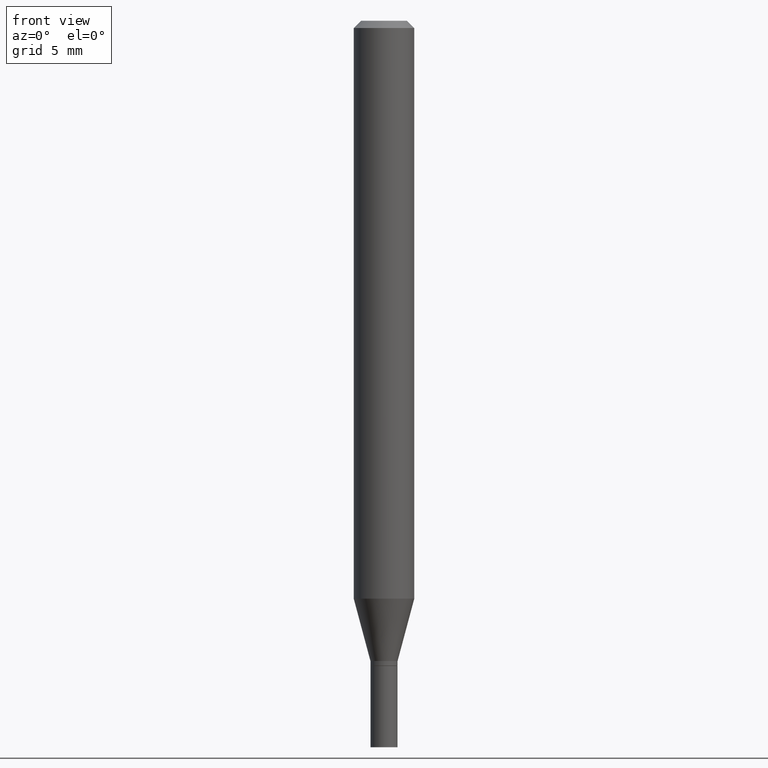
[diagram: clean part render]
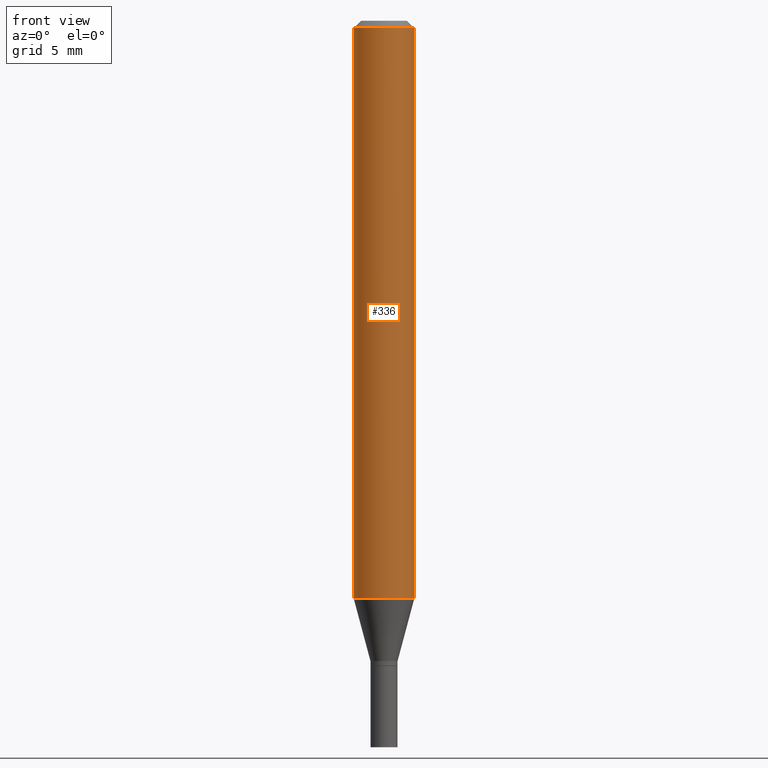
[diagram: same view with one face highlighted and labeled with its STEP entity id]
A machine part, front view. The second image highlights one B-rep face of the part: STEP entity #336.
In plain terms, the highlighted cylindrical surface (edge-blend (fillet) strip) has radius 1.5875 mm, axis along (-0, 0, 1).
Its self-contained STEP definition (entity closure, byte-faithful):
#2 = AXIS2_PLACEMENT_3D ( 'NONE', #412, #210, #23 ) ;
#5 = EDGE_CURVE ( 'NONE', #457, #57, #198, .T. ) ;
#23 = DIRECTION ( 'NONE',  ( 1.000000000000000000, -6.982962677686270655E-15, 0.000000000000000000 ) ) ;
#33 = DIRECTION ( 'NONE',  ( 1.000000000000000000, -6.982962677686266711E-15, 0.000000000000000000 ) ) ;
#52 = FACE_OUTER_BOUND ( 'NONE', #340, .T. ) ;
#56 = CARTESIAN_POINT ( 'NONE',  ( 0.06250000000000000000, -4.602625188922709150E-15, -1.193244247138873781 ) ) ;
#57 = VERTEX_POINT ( 'NONE', #112 ) ;
#59 = CIRCLE ( 'NONE', #2, 0.06250000000000000000 ) ;
#63 = ORIENTED_EDGE ( 'NONE', *, *, #414, .F. ) ;
#95 = CYLINDRICAL_SURFACE ( 'NONE', #331, 0.06250000000000000000 ) ;
#102 = CARTESIAN_POINT ( 'NONE',  ( 0.06250000000000000000, -4.364351673553916694E-16, 3.047610484872459871E-30 ) ) ;
#112 = CARTESIAN_POINT ( 'NONE',  ( 0.06250000000000000000, -4.888073874380388472E-16, -0.01499999999999999944 ) ) ;
#119 = CARTESIAN_POINT ( 'NONE',  ( -0.06250000000000000000, -3.722100811717253287E-15, -1.193244247138873781 ) ) ;
#135 = CARTESIAN_POINT ( 'NONE',  ( -0.06250000000000000000, 4.440892098500626162E-16, -3.074334431409316114E-30 ) ) ;
#151 = CARTESIAN_POINT ( 'NONE',  ( 3.668203209277705088E-31, -5.237222008264718399E-17, -0.01499999999999999944 ) ) ;
#154 = ORIENTED_EDGE ( 'NONE', *, *, #163, .T. ) ;
#163 = EDGE_CURVE ( 'NONE', #385, #57, #428, .T. ) ;
#165 = DIRECTION ( 'NONE',  ( 1.000000000000000000, -6.982962677686266711E-15, 4.876176775795935793E-29 ) ) ;
#183 = DIRECTION ( 'NONE',  ( -2.445468806185136597E-29, 3.491481338843145583E-15, 1.000000000000000000 ) ) ;
#188 = VECTOR ( 'NONE', #277, 39.37007874015748143 ) ;
#198 = CIRCLE ( 'NONE', #263, 0.06250000000000000000 ) ;
#207 = VERTEX_POINT ( 'NONE', #119 ) ;
#210 = DIRECTION ( 'NONE',  ( -2.445468806185136597E-29, 3.491481338843145583E-15, 1.000000000000000000 ) ) ;
#252 = DIRECTION ( 'NONE',  ( -2.445468806185136877E-29, 3.491481338843145188E-15, 1.000000000000000000 ) ) ;
#263 = AXIS2_PLACEMENT_3D ( 'NONE', #151, #183, #33 ) ;
#277 = DIRECTION ( 'NONE',  ( -2.445468806185136877E-29, 3.491481338843145188E-15, 1.000000000000000000 ) ) ;
#311 = LINE ( 'NONE', #135, #188 ) ;
#331 = AXIS2_PLACEMENT_3D ( 'NONE', #382, #415, #165 ) ;
#336 = ADVANCED_FACE ( 'NONE', ( #52 ), #95, .T. ) ;
#340 = EDGE_LOOP ( 'NONE', ( #63, #355, #154, #462 ) ) ;
#355 = ORIENTED_EDGE ( 'NONE', *, *, #390, .T. ) ;
#382 = CARTESIAN_POINT ( 'NONE',  ( 0.000000000000000000, 0.000000000000000000, 0.000000000000000000 ) ) ;
#385 = VERTEX_POINT ( 'NONE', #56 ) ;
#390 = EDGE_CURVE ( 'NONE', #207, #385, #59, .T. ) ;
#408 = VECTOR ( 'NONE', #252, 39.37007874015748143 ) ;
#412 = CARTESIAN_POINT ( 'NONE',  ( 2.918041584537983972E-29, -4.166190021567316692E-15, -1.193244247138873781 ) ) ;
#414 = EDGE_CURVE ( 'NONE', #207, #457, #311, .T. ) ;
#415 = DIRECTION ( 'NONE',  ( -2.445468806185136597E-29, 3.491481338843145583E-15, 1.000000000000000000 ) ) ;
#428 = LINE ( 'NONE', #102, #408 ) ;
#453 = CARTESIAN_POINT ( 'NONE',  ( -0.06250000000000000000, -1.665191910974919269E-15, -0.01499999999999999944 ) ) ;
#457 = VERTEX_POINT ( 'NONE', #453 ) ;
#462 = ORIENTED_EDGE ( 'NONE', *, *, #5, .F. ) ;